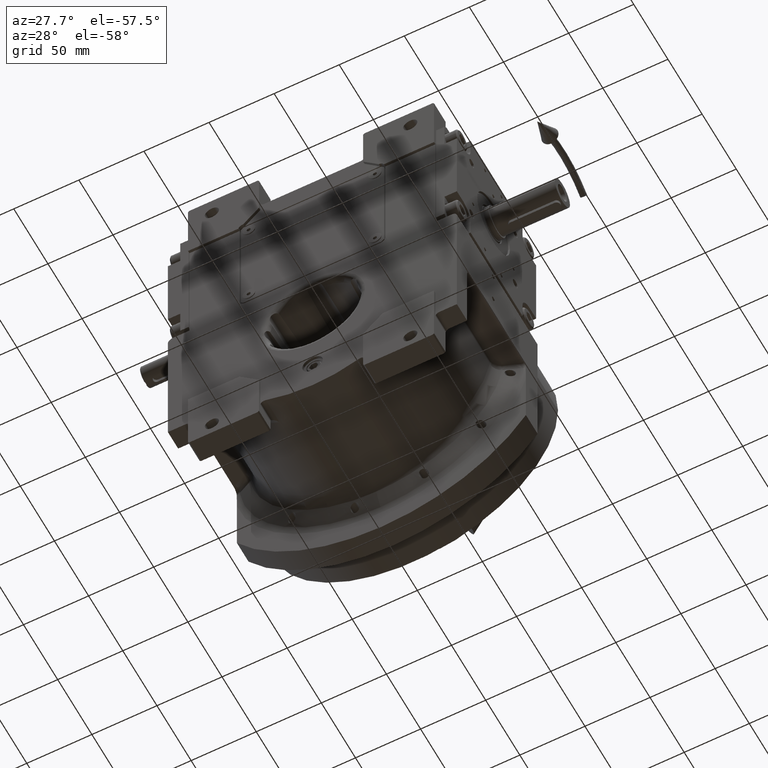
[diagram: clean part render]
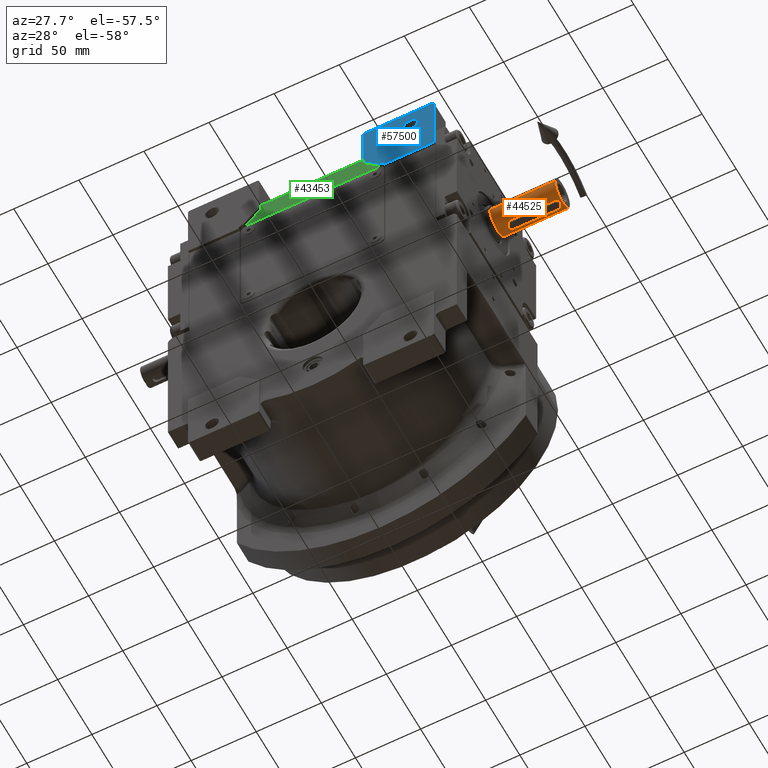
[diagram: same view with three faces highlighted in distinct colors, each labeled with its STEP entity id]
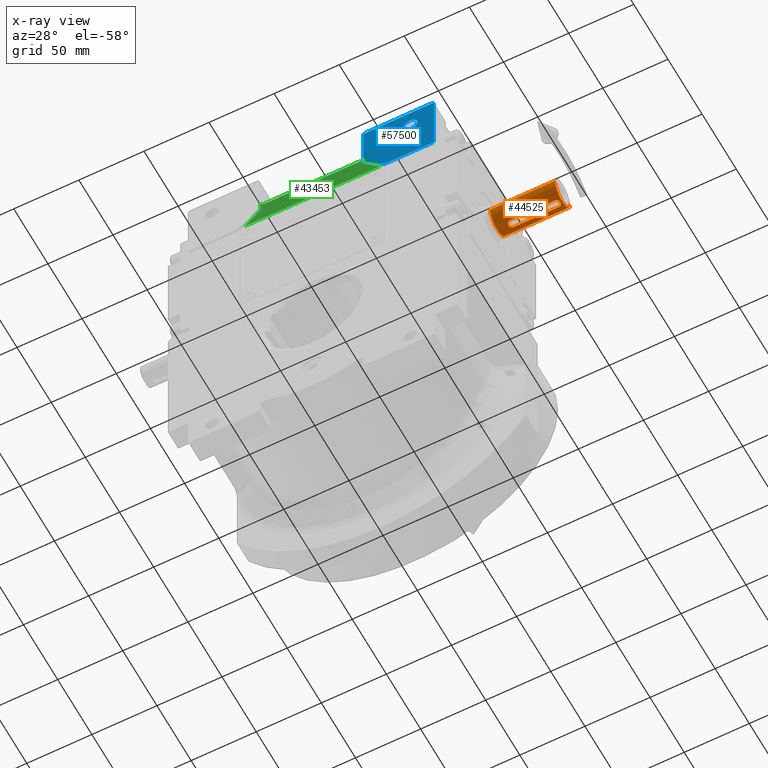
[diagram: x-ray of the same camera — body ghosted, the three highlighted faces saturated]
A machine part, auxiliary view with three faces highlighted in distinct colors.
The next image is the same camera in x-ray (body ghosted, the three faces saturated) — at least one of them is partly hidden behind the body in this view.
Their STEP definitions:

[orange] entity #44525 — the highlighted cylindrical surface (edge-blend (fillet) strip) has radius 11 mm, axis along (-1, -0, -0).
#129 = CARTESIAN_POINT ( 'NONE',  ( -2.786545512822438564, -114.6114912608402392, 10.64101912421236307 ) ) ;
#131 = CARTESIAN_POINT ( 'NONE',  ( -4.840915458495787926E-08, -116.5000000000000000, 11.00000000000048850 ) ) ;
#192 = CARTESIAN_POINT ( 'NONE',  ( 1.167542114975285150, -76.73651225059066405, 10.93782164777859656 ) ) ;
#448 = CARTESIAN_POINT ( 'NONE',  ( 2.748365601800584646, -114.7029062735035723, 10.65097209834158498 ) ) ;
#481 = CARTESIAN_POINT ( 'NONE',  ( -2.438081981028026757, -115.2518712317274634, 10.72743683188283015 ) ) ;
#546 = CARTESIAN_POINT ( 'NONE',  ( -1.429970842532956921, -76.85548033673214263, 10.90719156782524024 ) ) ;
#1048 = DIRECTION ( 'NONE',  ( 4.190823558986625216E-31, -1.000000000000000000, -8.381647117973250432E-31 ) ) ;
#1149 = ORIENTED_EDGE ( 'NONE', *, *, #37460, .T. ) ;
#1634 = ORIENTED_EDGE ( 'NONE', *, *, #12862, .F. ) ;
#1827 = CARTESIAN_POINT ( 'NONE',  ( 2.076400096479022128, -115.6655274302378729, 10.80229491738725933 ) ) ;
#2475 = CARTESIAN_POINT ( 'NONE',  ( -3.000000000000073719, -113.5000000000000000, 10.58300524425882827 ) ) ;
#3692 = CARTESIAN_POINT ( 'NONE',  ( 2.331831195179038474, -77.61164425542862944, 10.75053737701511913 ) ) ;
#4353 = CARTESIAN_POINT ( 'NONE',  ( 2.854075889747961003, -78.57447739851251356, 10.62355101183470119 ) ) ;
#4684 = CARTESIAN_POINT ( 'NONE',  ( 2.772312148145364308, -78.35357030373856446, 10.64471541581966818 ) ) ;
#4899 = EDGE_CURVE ( 'NONE', #51442, #62395, #65259, .T. ) ;
#4946 = AXIS2_PLACEMENT_3D ( 'NONE', #21694, #53336, #63618 ) ;
#4960 = ORIENTED_EDGE ( 'NONE', *, *, #62304, .F. ) ;
#5022 = CARTESIAN_POINT ( 'NONE',  ( 1.286031796418897866, -76.78935861155120790, 10.92437284017435495 ) ) ;
#5298 = CARTESIAN_POINT ( 'NONE',  ( -2.331831185041221222, -115.3883557567792764, 10.75053737960897493 ) ) ;
#5355 = CARTESIAN_POINT ( 'NONE',  ( -0.6690474891746189812, -76.57389770467740675, 10.97984744493158260 ) ) ;
#5582 = CARTESIAN_POINT ( 'NONE',  ( 2.601559358105706821, -114.9971618098907840, 10.68881840702278474 ) ) ;
#5857 = CARTESIAN_POINT ( 'NONE',  ( 3.235562306570556233E-29, -67.99999999999998579, 0.000000000000000000 ) ) ;
#6034 = CARTESIAN_POINT ( 'NONE',  ( -1.127575440310266019, -76.71996127125699161, 10.94202595200815686 ) ) ;
#6314 = CARTESIAN_POINT ( 'NONE',  ( -1.512920531882271824, -116.0924210061373287, 10.89501526675175036 ) ) ;
#6979 = CARTESIAN_POINT ( 'NONE',  ( 0.9835667666182150715, -116.3349916050398889, 10.95606526596657915 ) ) ;
#7090 = ORIENTED_EDGE ( 'NONE', *, *, #4899, .F. ) ;
#7171 = CARTESIAN_POINT ( 'NONE',  ( -11.00000000000000000, -117.9999999999999858, 4.718447854656915297E-13 ) ) ;
#7705 = VECTOR ( 'NONE', #39184, 1000.000000000000000 ) ;
#7867 = LINE ( 'NONE', #28893, #14544 ) ;
#8529 = CARTESIAN_POINT ( 'NONE',  ( 1.761503377968230977, -77.06373099116252945, 10.85852761879097805 ) ) ;
#8847 = CARTESIAN_POINT ( 'NONE',  ( 2.211193340447755951, -77.47227894400909065, 10.77562497333751068 ) ) ;
#9543 = CARTESIAN_POINT ( 'NONE',  ( 2.801868822121423630, -78.42737245009013236, 10.63704590504073089 ) ) ;
#9865 = CARTESIAN_POINT ( 'NONE',  ( 11.00000000000000000, -117.9999999999999858, 0.000000000000000000 ) ) ;
#10129 = CARTESIAN_POINT ( 'NONE',  ( -2.211193358110664864, -115.5277210365973701, 10.77562496973145656 ) ) ;
#10541 = CARTESIAN_POINT ( 'NONE',  ( -2.698907276580597703, -78.18945505232750293, 10.66393861832711920 ) ) ;
#10816 = CARTESIAN_POINT ( 'NONE',  ( -2.232376625041755602, -115.5043590134487346, 10.77130177311130588 ) ) ;
#11034 = DIRECTION ( 'NONE',  ( 1.000000000000000000, 0.000000000000000000, -7.549516567451064475E-15 ) ) ;
#11136 = CARTESIAN_POINT ( 'NONE',  ( -0.3739857927347142730, -116.4999999999999858, 11.00000000000050981 ) ) ;
#11206 = CARTESIAN_POINT ( 'NONE',  ( -1.067681461186224867, -76.69621423876724009, 10.94807461226177203 ) ) ;
#11469 = CARTESIAN_POINT ( 'NONE',  ( 1.139535554658597460, -116.2751577281618438, 10.94078554495679612 ) ) ;
#11563 = CARTESIAN_POINT ( 'NONE',  ( -1.942007649469778663, -77.21260548667788726, 10.82708015886219854 ) ) ;
#11990 = LINE ( 'NONE', #38155, #38782 ) ;
#12088 = DIRECTION ( 'NONE',  ( 4.190823558986625216E-31, -1.000000000000000000, -8.381647117973250432E-31 ) ) ;
#12162 = CARTESIAN_POINT ( 'NONE',  ( 2.097778197096812125, -115.6448602184734966, 10.79818605929185615 ) ) ;
#12862 = EDGE_CURVE ( 'NONE', #19240, #14517, #45337, .T. ) ;
#13645 = VECTOR ( 'NONE', #46015, 1000.000000000000000 ) ;
#13701 = CARTESIAN_POINT ( 'NONE',  ( 2.498350210409115757, -77.83631408846900968, 10.71355039470006609 ) ) ;
#14042 = CARTESIAN_POINT ( 'NONE',  ( 1.512920533460961892, -76.90757899485137727, 10.89501526605510229 ) ) ;
#14517 = VERTEX_POINT ( 'NONE', #2475 ) ;
#14544 = VECTOR ( 'NONE', #49873, 1000.000000000000000 ) ;
#15326 = CARTESIAN_POINT ( 'NONE',  ( -1.179703459327975157, -116.2583394675193915, 10.93651200414548441 ) ) ;
#15383 = CARTESIAN_POINT ( 'NONE',  ( -2.644564621108238978, -78.08127093686657361, 10.67795878946513000 ) ) ;
#15654 = CARTESIAN_POINT ( 'NONE',  ( -2.896620451319825040, -114.2867369626761587, 10.61255511890330183 ) ) ;
#15722 = CARTESIAN_POINT ( 'NONE',  ( -2.601559308220465994, -78.00283810369266746, 10.68881842332068643 ) ) ;
#15974 = CARTESIAN_POINT ( 'NONE',  ( 2.031554872715503279, -115.7076528737364356, 10.81075489181149507 ) ) ;
#15998 = CARTESIAN_POINT ( 'NONE',  ( -1.159478978466615073, -116.2668804870942694, 10.93868413037348652 ) ) ;
#16068 = CARTESIAN_POINT ( 'NONE',  ( -1.897425700790509762, -77.17558050972417050, 10.83486050620179952 ) ) ;
#16344 = CARTESIAN_POINT ( 'NONE',  ( -2.920736496382435821, -114.1920785685286575, 10.60630211981259130 ) ) ;
#16405 = CARTESIAN_POINT ( 'NONE',  ( -2.031554922310092159, -77.29234717181739711, 10.81075488192654710 ) ) ;
#16925 = DIRECTION ( 'NONE',  ( 1.000000000000000000, 0.000000000000000000, -7.549516567451066053E-15 ) ) ;
#17006 = CARTESIAN_POINT ( 'NONE',  ( 2.999999999999926281, -113.5000000000000000, 10.58300524425882827 ) ) ;
#19240 = VERTEX_POINT ( 'NONE', #32155 ) ;
#19263 = ORIENTED_EDGE ( 'NONE', *, *, #30068, .F. ) ;
#20811 = CARTESIAN_POINT ( 'NONE',  ( -2.772312159647769114, -114.6464296684535213, 10.64471541497836782 ) ) ;
#20876 = CARTESIAN_POINT ( 'NONE',  ( -2.715324926754107082, -78.22394794041348121, 10.65964344122200025 ) ) ;
#21219 = CARTESIAN_POINT ( 'NONE',  ( -0.1869662585111979136, -76.49999999283610919, 11.00000258885300575 ) ) ;
#21497 = CARTESIAN_POINT ( 'NONE',  ( -1.234039042478084713, -116.2345038436760660, 10.93043900566959081 ) ) ;
#21566 = CARTESIAN_POINT ( 'NONE',  ( 1.208541853669300670, -76.75409394963317311, 10.93334476671340028 ) ) ;
#21694 = CARTESIAN_POINT ( 'NONE',  ( 3.235562306570556233E-29, -67.99999999999998579, 0.000000000000000000 ) ) ;
#21908 = CARTESIAN_POINT ( 'NONE',  ( -0.7660301964639695260, -76.59769131162435940, 10.97354823434117144 ) ) ;
#22072 = CARTESIAN_POINT ( 'NONE',  ( -1.676907202577966257E-27, -117.9999999999999858, 4.718447854656915297E-13 ) ) ;
#22150 = CARTESIAN_POINT ( 'NONE',  ( 0.9111339967346082647, -116.3587381832187759, 10.96220668040143309 ) ) ;
#22511 = CARTESIAN_POINT ( 'NONE',  ( 2.446669414197478520, -115.2470624180614465, 10.72593587093006562 ) ) ;
#22735 = FACE_OUTER_BOUND ( 'NONE', #49571, .T. ) ;
#22860 = CARTESIAN_POINT ( 'NONE',  ( 2.698907300592920055, -114.8105448978638066, 10.66393860694408957 ) ) ;
#25384 = CARTESIAN_POINT ( 'NONE',  ( 2.979326592047871092, -79.09712189806012361, 10.59077590235678379 ) ) ;
#25717 = CARTESIAN_POINT ( 'NONE',  ( 2.438082008746787821, -77.74812880550850025, 10.72743682466660431 ) ) ;
#26385 = CARTESIAN_POINT ( 'NONE',  ( -2.916727202267192176, -78.70149496793986543, 10.60716793333591035 ) ) ;
#26629 = CARTESIAN_POINT ( 'NONE',  ( 2.768513101405047472, -114.6555823575875337, 10.64570307426178353 ) ) ;
#26655 = CARTESIAN_POINT ( 'NONE',  ( -2.653232546180599893, -114.9137805338954763, 10.67643293072689303 ) ) ;
#26988 = CARTESIAN_POINT ( 'NONE',  ( 0.7660654482596133130, -116.4022991523579691, 10.97354467628115771 ) ) ;
#27082 = CARTESIAN_POINT ( 'NONE',  ( -2.767734110829759508, -78.34256138730094676, 10.64590626962410091 ) ) ;
#27335 = CARTESIAN_POINT ( 'NONE',  ( 2.916727034310283795, -114.2985054512027574, 10.60716798336008715 ) ) ;
#27359 = CARTESIAN_POINT ( 'NONE',  ( -2.801868851850198627, -114.5726274728256726, 10.63704589790049404 ) ) ;
#27422 = CARTESIAN_POINT ( 'NONE',  ( -2.768513115839232874, -78.34441767696033310, 10.64570307403959504 ) ) ;
#27814 = CARTESIAN_POINT ( 'NONE',  ( 2.999999999999926281, -113.5000000000000000, 10.58300524425882827 ) ) ;
#28017 = CARTESIAN_POINT ( 'NONE',  ( 1.279005597976971442, -116.2172074953522980, 10.92607964090155193 ) ) ;
#28210 = VERTEX_POINT ( 'NONE', #27814 ) ;
#28522 = DIRECTION ( 'NONE',  ( 4.190823558986625216E-31, -1.000000000000000000, -8.381647117973250432E-31 ) ) ;
#28893 = CARTESIAN_POINT ( 'NONE',  ( 2.999999999999926281, -79.50000000000000000, 10.58300524425835576 ) ) ;
#30068 = EDGE_CURVE ( 'NONE', #14517, #42099, #54710, .T. ) ;
#31130 = CARTESIAN_POINT ( 'NONE',  ( -1.322026388172344413, -116.1933228505703539, 10.91998920232880721 ) ) ;
#31199 = CARTESIAN_POINT ( 'NONE',  ( -0.9835476433820019571, -76.66500159928874325, 10.95606724537882748 ) ) ;
#31248 = EDGE_CURVE ( 'NONE', #57088, #28210, #7867, .T. ) ;
#31539 = CARTESIAN_POINT ( 'NONE',  ( -0.3790214207103356214, -76.51752795411343300, 10.99496477369260461 ) ) ;
#31777 = CARTESIAN_POINT ( 'NONE',  ( 2.999999999999919176, -113.9062021680413750, 10.58646632254322206 ) ) ;
#31804 = CARTESIAN_POINT ( 'NONE',  ( -1.286031809961730721, -116.2106413819468287, 10.92437284010989806 ) ) ;
#32155 = CARTESIAN_POINT ( 'NONE',  ( -3.000000000000073719, -79.50000000000000000, 10.58300524425882827 ) ) ;
#32206 = CARTESIAN_POINT ( 'NONE',  ( -2.446669362798354008, -77.75293751087282601, 10.72593588417801058 ) ) ;
#32459 = CARTESIAN_POINT ( 'NONE',  ( 1.678559002724991700, -115.9883759540915946, 10.87070391493019628 ) ) ;
#32485 = CARTESIAN_POINT ( 'NONE',  ( -2.143602493980512058, -115.5990403563740898, 10.78918135663523969 ) ) ;
#32550 = CARTESIAN_POINT ( 'NONE',  ( -3.000000000000080380, -79.09379826886221565, 10.58646627284833031 ) ) ;
#32807 = CARTESIAN_POINT ( 'NONE',  ( 1.897425672200162117, -115.8244195134346342, 10.83486051196191369 ) ) ;
#32963 = CARTESIAN_POINT ( 'NONE',  ( 10.99999999999993960, -67.99999999999998579, 0.000000000000000000 ) ) ;
#33142 = CARTESIAN_POINT ( 'NONE',  ( 2.764613546698427626, -114.6648726058257921, 10.64672004168916963 ) ) ;
#34697 = CARTESIAN_POINT ( 'NONE',  ( 2.143602447687566137, -77.40095959642091827, 10.78918136595093102 ) ) ;
#35035 = CARTESIAN_POINT ( 'NONE',  ( 2.999999999999920064, -79.29694141520381834, 10.58473540700586568 ) ) ;
#35350 = CARTESIAN_POINT ( 'NONE',  ( 1.433641076574839968, -76.86340366032534632, 10.90581970597269112 ) ) ;
#36036 = CARTESIAN_POINT ( 'NONE',  ( 2.896620395667458769, -78.71326283637806398, 10.61255514141635636 ) ) ;
#36299 = CARTESIAN_POINT ( 'NONE',  ( -1.433641077008285025, -116.1365963392273954, 10.90581970676166712 ) ) ;
#36667 = VERTEX_POINT ( 'NONE', #58308 ) ;
#36681 = ORIENTED_EDGE ( 'NONE', *, *, #50203, .F. ) ;
#36696 = CARTESIAN_POINT ( 'NONE',  ( -1.147497411269812639, -76.72812909463446829, 10.93995103007683412 ) ) ;
#36941 = CARTESIAN_POINT ( 'NONE',  ( 2.767734096340818795, -114.6574386473348426, 10.64590626981477328 ) ) ;
#37037 = CARTESIAN_POINT ( 'NONE',  ( -2.764613558908787905, -78.33512742314236732, 10.64672004227435664 ) ) ;
#37369 = CARTESIAN_POINT ( 'NONE',  ( -1.139534090975058644, -76.72484166894793134, 10.94078570188625577 ) ) ;
#37460 = EDGE_CURVE ( 'NONE', #45360, #62395, #11990, .T. ) ;
#37619 = CARTESIAN_POINT ( 'NONE',  ( 1.147497349431809033, -116.2718709309673102, 10.93995103388387236 ) ) ;
#37647 = CARTESIAN_POINT ( 'NONE',  ( -2.854075939418667218, -114.4255224491567589, 10.62355099528262947 ) ) ;
#37721 = CARTESIAN_POINT ( 'NONE',  ( -0.9111087367172178153, -76.64125370730343434, 10.96220926695045783 ) ) ;
#38155 = CARTESIAN_POINT ( 'NONE',  ( -11.00000000000005862, -67.99999999999998579, 4.718447854656915297E-13 ) ) ;
#38331 = CARTESIAN_POINT ( 'NONE',  ( 0.1869928963672328748, -116.5000000000000000, 11.00000000000050981 ) ) ;
#38782 = VECTOR ( 'NONE', #28522, 1000.000000000000000 ) ;
#39184 = DIRECTION ( 'NONE',  ( 4.190823558986625216E-31, -1.000000000000000000, -8.381647117973250432E-31 ) ) ;
#39776 = ORIENTED_EDGE ( 'NONE', *, *, #31248, .T. ) ;
#40048 = EDGE_CURVE ( 'NONE', #57088, #19240, #50509, .T. ) ;
#40207 = CARTESIAN_POINT ( 'NONE',  ( 2.293772752492898359, -77.56545913327460084, 10.75861604569774777 ) ) ;
#40543 = CARTESIAN_POINT ( 'NONE',  ( 2.920736444934341591, -78.80792121401641737, 10.60630214428831941 ) ) ;
#41206 = CARTESIAN_POINT ( 'NONE',  ( 2.722192524068734798, -78.23282212291366022, 10.65774368925957560 ) ) ;
#41484 = CARTESIAN_POINT ( 'NONE',  ( -3.000000000000079492, -113.7030584421398487, 10.58473539081854931 ) ) ;
#41553 = CARTESIAN_POINT ( 'NONE',  ( -1.109627391464160562, -76.71270413328906557, 10.94387156038236952 ) ) ;
#41689 = CARTESIAN_POINT ( 'NONE',  ( 2.999999999999926281, -79.50000000000000000, 10.58300524425835576 ) ) ;
#41807 = CARTESIAN_POINT ( 'NONE',  ( -0.7693699750027528372, -116.4290454329743056, 10.97984356645985038 ) ) ;
#41867 = CARTESIAN_POINT ( 'NONE',  ( -2.009136536754209779, -77.27193756388575707, 10.81489991634849446 ) ) ;
#42099 = VERTEX_POINT ( 'NONE', #131 ) ;
#42143 = CARTESIAN_POINT ( 'NONE',  ( -2.779840307740174765, -114.6280617584312438, 10.64275981934222770 ) ) ;
#42207 = CARTESIAN_POINT ( 'NONE',  ( 1.234039021328156460, -76.76549614676038402, 10.93043900635687038 ) ) ;
#42455 = CARTESIAN_POINT ( 'NONE',  ( 2.737723598718589280, -114.7268635114971858, 10.65376798934626912 ) ) ;
#42482 = CARTESIAN_POINT ( 'NONE',  ( -1.167542148442811456, -116.2634877352683276, 10.93782164602118634 ) ) ;
#42549 = CARTESIAN_POINT ( 'NONE',  ( 0.7694190409318364399, -76.57097496801954151, 10.97983838684685765 ) ) ;
#42785 = CARTESIAN_POINT ( 'NONE',  ( 2.644564663183356146, -114.9187289833812144, 10.67795877401470328 ) ) ;
#42810 = CARTESIAN_POINT ( 'NONE',  ( -2.293772750023087781, -115.4345408691869324, 10.75861604645032443 ) ) ;
#42870 = CARTESIAN_POINT ( 'NONE',  ( 1.157452250761899615, -76.73226697775150740, 10.93890089386556852 ) ) ;
#42898 = ORIENTED_EDGE ( 'NONE', *, *, #49206, .T. ) ;
#42993 = CYLINDRICAL_SURFACE ( 'NONE', #4946, 11.00000000000000000 ) ;
#43478 = CARTESIAN_POINT ( 'NONE',  ( 2.759871028151260841, -114.6761075330201294, 10.64795842826984007 ) ) ;
#43488 = ORIENTED_EDGE ( 'NONE', *, *, #40048, .F. ) ;
#43823 = CARTESIAN_POINT ( 'NONE',  ( 1.429970843166102679, -116.1445196625885217, 10.90719156650605193 ) ) ;
#44525 = ADVANCED_FACE ( 'NONE', ( #59495, #22735 ), #42993, .T. ) ;
#45335 = CARTESIAN_POINT ( 'NONE',  ( 2.831211728711954034, -78.50588394405968984, 10.62945304072544772 ) ) ;
#45337 = LINE ( 'NONE', #66313, #13645 ) ;
#45360 = VERTEX_POINT ( 'NONE', #62130 ) ;
#45680 = CARTESIAN_POINT ( 'NONE',  ( 2.232376612811747929, -77.49564097281745489, 10.77130177557136292 ) ) ;
#46015 = DIRECTION ( 'NONE',  ( 4.190823558986625216E-31, -1.000000000000000000, -8.381647117973250432E-31 ) ) ;
#46338 = CARTESIAN_POINT ( 'NONE',  ( 2.786545491918462236, -78.38850868690020945, 10.64101912818406070 ) ) ;
#46691 = CARTESIAN_POINT ( 'NONE',  ( 2.167336317328032003, -77.42546825588506465, 10.78446061115302967 ) ) ;
#47352 = CARTESIAN_POINT ( 'NONE',  ( 1.179703428401759346, -76.74166051924399312, 10.93651200567690474 ) ) ;
#47633 = CARTESIAN_POINT ( 'NONE',  ( -2.831211772329589760, -114.4941159338586374, 10.62945302790810054 ) ) ;
#47948 = CARTESIAN_POINT ( 'NONE',  ( 1.765016538473147323, -115.9284393430261133, 10.85718210774114389 ) ) ;
#48050 = CARTESIAN_POINT ( 'NONE',  ( -3.000000000000073719, -79.50000000000000000, 10.58300524425882827 ) ) ;
#48296 = CARTESIAN_POINT ( 'NONE',  ( 1.127578398133127324, -116.2800375271874884, 10.94202563825614050 ) ) ;
#48382 = CARTESIAN_POINT ( 'NONE',  ( -1.678559007684448101, -77.01162404916422588, 10.87070391387390345 ) ) ;
#48636 = CARTESIAN_POINT ( 'NONE',  ( 1.109632560325084949, -116.2872937962976181, 10.94387101518969097 ) ) ;
#49206 = EDGE_CURVE ( 'NONE', #36667, #45360, #66921, .T. ) ;
#49571 = EDGE_LOOP ( 'NONE', ( #1149, #7090, #36681, #42898 ) ) ;
#49873 = DIRECTION ( 'NONE',  ( 4.190823558986625216E-31, -1.000000000000000000, -8.381647117973250432E-31 ) ) ;
#50203 = EDGE_CURVE ( 'NONE', #36667, #51442, #64603, .T. ) ;
#50509 = B_SPLINE_CURVE_WITH_KNOTS ( 'NONE', 3,
 ( #66978, #35035, #25384, #40543, #36036, #4353, #45335, #9543, #46338, #67661, #66312, #4684, #41206, #60831, #13701, #25717, #3692, #40207, #45680, #8847, #46691, #34697, #55670, #8529, #14042, #35350, #56325, #5022, #42207, #21566, #47352, #192, #67988, #42870, #42549, #63498, #21219, #31539, #5355, #21908, #37721, #31199, #11206, #41553, #6034, #37369, #36696, #58691, #546, #48382, #63165, #16068, #11563, #41867, #16405, #58335, #63826, #52849, #32206, #15722, #15383, #10541, #20876, #52527, #57673, #53203, #37037, #27082, #27422, #26385, #32550, #48050 ),
 .UNSPECIFIED., .F., .F.,
 ( 4, 2, 2, 1, 1, 1, 2, 2, 2, 2, 2, 2, 2, 2, 2, 2, 1, 1, 2, 2, 2, 2, 2, 1, 1, 1, 2, 2, 2, 2, 2, 2, 2, 2, 2, 2, 1, 1, 2, 2, 4 ),
 ( 0.000000000000000000, 0.06250000000004715672, 0.09375000000007072121, 0.1093750000000824479, 0.1171875000000862366, 0.1210937500000881101, 0.1230468750000890399, 0.1250000000000899558, 0.1875000000000942579, 0.2187500000000982825, 0.2343750000001017797, 0.2421875000001035838, 0.2500000000001053602, 0.3125000000001197376, 0.3437500000001258438, 0.3593750000001288969, 0.3671875000001291744, 0.3710937500001292855, 0.3730468750001292855, 0.3750000000001293410, 0.5000000000001079137, 0.5625000000000973666, 0.5937500000000915934, 0.6093750000000887068, 0.6171875000000880407, 0.6210937500000884848, 0.6230468750000885958, 0.6250000000000887068, 0.6875000000000623945, 0.7187500000000492939, 0.7343750000000426326, 0.7421875000000405231, 0.7500000000000384137, 0.8125000000000125455, 0.8437499999999995559, 0.8593749999999906741, 0.8671874999999888978, 0.8710937499999910072, 0.8730468749999920064, 0.8749999999999930056, 1.000000000000000000 ),
 .UNSPECIFIED. ) ;
#51442 = VERTEX_POINT ( 'NONE', #9865 ) ;
#51641 = EDGE_LOOP ( 'NONE', ( #39776, #4960, #19263, #1634, #43488 ) ) ;
#52129 = CARTESIAN_POINT ( 'NONE',  ( -1.157453054966566253, -116.2677326878750534, 10.93890081083039334 ) ) ;
#52463 = CARTESIAN_POINT ( 'NONE',  ( -2.498350178177038750, -115.1636859597701914, 10.71355040379593682 ) ) ;
#52527 = CARTESIAN_POINT ( 'NONE',  ( -2.737723593628864194, -78.27313647700940180, 10.65376799547565234 ) ) ;
#52754 = CARTESIAN_POINT ( 'NONE',  ( 0.3790610715422206844, -116.4824670046868960, 10.99496089072063221 ) ) ;
#52849 = CARTESIAN_POINT ( 'NONE',  ( -2.308734339584197048, -77.56607553631238261, 10.75673227047042957 ) ) ;
#53136 = CARTESIAN_POINT ( 'NONE',  ( -2.979326620798048886, -113.9028778870461309, 10.59077587802696030 ) ) ;
#53203 = CARTESIAN_POINT ( 'NONE',  ( -2.759871036972639580, -78.32389248760772205, 10.64795842999695985 ) ) ;
#53336 = DIRECTION ( 'NONE',  ( -4.190823558986625216E-31, 1.000000000000000000, 8.381647117973250432E-31 ) ) ;
#53483 = CARTESIAN_POINT ( 'NONE',  ( -1.761503380922786244, -115.9362690069877573, 10.85852761782648734 ) ) ;
#54710 = B_SPLINE_CURVE_WITH_KNOTS ( 'NONE', 3,
 ( #58272, #41484, #53136, #16344, #15654, #37647, #47633, #27359, #129, #42143, #58620, #20811, #57257, #26655, #52463, #481, #5298, #42810, #10816, #10129, #63761, #32485, #67929, #53483, #6314, #36299, #31130, #31804, #21497, #62435, #15326, #42482, #15998, #52129, #41807, #11136, #57943 ),
 .UNSPECIFIED., .F., .F.,
 ( 4, 2, 2, 1, 1, 1, 2, 2, 2, 2, 2, 2, 2, 2, 2, 2, 1, 1, 2, 2, 4 ),
 ( 0.000000000000000000, 0.06249999999990615840, 0.09374999999986140253, 0.1093749999998390315, 0.1171874999998278738, 0.1210937499998244044, 0.1230468749998247235, 0.1249999999998250566, 0.1874999999998420430, 0.2187499999998504530, 0.2343749999998546441, 0.2421874999998580302, 0.2499999999998613887, 0.3124999999998932521, 0.3437499999999080735, 0.3593749999999155120, 0.3671874999999191758, 0.3710937499999211187, 0.3730468749999232836, 0.3749999999999254485, 0.5000000000000000000 ),
 .UNSPECIFIED. ) ;
#54878 = AXIS2_PLACEMENT_3D ( 'NONE', #5857, #12088, #11034 ) ;
#55670 = CARTESIAN_POINT ( 'NONE',  ( 1.942138428050937504, -77.19951509893311936, 10.82877008393308849 ) ) ;
#55673 = B_SPLINE_CURVE_WITH_KNOTS ( 'NONE', 3,
 ( #67570, #38331, #52754, #58244, #26988, #22150, #6979, #58594, #48636, #48296, #11469, #37619, #28017, #43823, #32459, #47948, #32807, #63405, #59284, #15974, #1827, #12162, #58943, #22511, #5582, #42785, #22860, #63730, #42455, #448, #43478, #33142, #36941, #26629, #27335, #31777, #17006 ),
 .UNSPECIFIED., .F., .F.,
 ( 4, 2, 2, 1, 1, 1, 2, 2, 2, 2, 2, 2, 2, 2, 2, 2, 1, 1, 2, 2, 4 ),
 ( 0.5000000000000000000, 0.5624999999999279465, 0.5937499999998923084, 0.6093749999998750999, 0.6171874999998657740, 0.6210937499998611111, 0.6230468749998595568, 0.6249999999998580025, 0.6874999999998666622, 0.7187499999998709921, 0.7343749999998732125, 0.7421874999998744338, 0.7499999999998755440, 0.8124999999998847589, 0.8437499999998875344, 0.8593749999998911981, 0.8671874999998904210, 0.8710937499998928635, 0.8730468749998970823, 0.8749999999999013012, 1.000000000000000000 ),
 .UNSPECIFIED. ) ;
#56325 = CARTESIAN_POINT ( 'NONE',  ( 1.322026378660216439, -76.80667714470885699, 10.91998920209339552 ) ) ;
#57088 = VERTEX_POINT ( 'NONE', #41689 ) ;
#57257 = CARTESIAN_POINT ( 'NONE',  ( -2.722192511089886136, -114.7671779114493518, 10.65774369693636459 ) ) ;
#57673 = CARTESIAN_POINT ( 'NONE',  ( -2.748365602923857232, -78.29709372879082707, 10.65097210258031701 ) ) ;
#57943 = CARTESIAN_POINT ( 'NONE',  ( -4.840915458495787926E-08, -116.5000000000000000, 11.00000000000048850 ) ) ;
#58244 = CARTESIAN_POINT ( 'NONE',  ( 0.6690863468408663195, -116.4260934098166018, 10.97984356288100116 ) ) ;
#58272 = CARTESIAN_POINT ( 'NONE',  ( -3.000000000000073719, -113.5000000000000000, 10.58300524425882827 ) ) ;
#58308 = CARTESIAN_POINT ( 'NONE',  ( 10.99999999999993960, -67.99999999999998579, 0.000000000000000000 ) ) ;
#58335 = CARTESIAN_POINT ( 'NONE',  ( -2.076400153897482781, -77.33447262473092110, 10.80229490591453434 ) ) ;
#58594 = CARTESIAN_POINT ( 'NONE',  ( 1.067691574909811481, -116.3037818627402373, 10.94807355359302647 ) ) ;
#58620 = CARTESIAN_POINT ( 'NONE',  ( -2.775339673020046138, -114.6390896219055406, 10.64392870139622183 ) ) ;
#58691 = CARTESIAN_POINT ( 'NONE',  ( -1.279005615026155285, -76.78279251499961333, 10.92607964108014151 ) ) ;
#58943 = CARTESIAN_POINT ( 'NONE',  ( 2.308734362824007569, -115.4339244520515138, 10.75673226671229266 ) ) ;
#59284 = CARTESIAN_POINT ( 'NONE',  ( 2.009136490928576713, -115.7280624773661089, 10.81489992548212520 ) ) ;
#59495 = FACE_BOUND ( 'NONE', #51641, .T. ) ;
#60831 = CARTESIAN_POINT ( 'NONE',  ( 2.653232577745011422, -78.08621952457060900, 10.67643291959784513 ) ) ;
#62130 = CARTESIAN_POINT ( 'NONE',  ( -11.00000000000005862, -67.99999999999998579, 4.718447854656915297E-13 ) ) ;
#62304 = EDGE_CURVE ( 'NONE', #42099, #28210, #55673, .T. ) ;
#62395 = VERTEX_POINT ( 'NONE', #7171 ) ;
#62435 = CARTESIAN_POINT ( 'NONE',  ( -1.208541879012653641, -116.2459060391745567, 10.93334476567145508 ) ) ;
#63165 = CARTESIAN_POINT ( 'NONE',  ( -1.765016550553743402, -77.07156066506719583, 10.85718210521195815 ) ) ;
#63405 = CARTESIAN_POINT ( 'NONE',  ( 1.942007614415594885, -115.7873945428070073, 10.82708016586956923 ) ) ;
#63498 = CARTESIAN_POINT ( 'NONE',  ( 0.3739328618712013941, -76.50000001432783847, 10.99999482229338810 ) ) ;
#63618 = DIRECTION ( 'NONE',  ( 1.000000000000000000, 0.000000000000000000, -7.549516567451064475E-15 ) ) ;
#63730 = CARTESIAN_POINT ( 'NONE',  ( 2.715324943672469793, -114.7760520230643522, 10.65964343166080930 ) ) ;
#63761 = CARTESIAN_POINT ( 'NONE',  ( -2.167336347002070340, -115.5745317129838696, 10.78446060510474069 ) ) ;
#63826 = CARTESIAN_POINT ( 'NONE',  ( -2.097778273838088126, -77.35513985681002680, 10.79818604398536408 ) ) ;
#64603 = LINE ( 'NONE', #32963, #7705 ) ;
#65259 = CIRCLE ( 'NONE', #66326, 11.00000000000000000 ) ;
#66312 = CARTESIAN_POINT ( 'NONE',  ( 2.775339659217229471, -78.36091034448604375, 10.64392870297112026 ) ) ;
#66313 = CARTESIAN_POINT ( 'NONE',  ( -3.000000000000073719, -79.50000000000000000, 10.58300524425882827 ) ) ;
#66326 = AXIS2_PLACEMENT_3D ( 'NONE', #22072, #1048, #16925 ) ;
#66921 = CIRCLE ( 'NONE', #54878, 11.00000000000000000 ) ;
#66978 = CARTESIAN_POINT ( 'NONE',  ( 2.999999999999926281, -79.50000000000000000, 10.58300524425835576 ) ) ;
#67570 = CARTESIAN_POINT ( 'NONE',  ( -4.840915458495787926E-08, -116.5000000000000000, 11.00000000000048850 ) ) ;
#67661 = CARTESIAN_POINT ( 'NONE',  ( 2.779840291039519684, -78.37193820043569303, 10.64275982188527792 ) ) ;
#67929 = CARTESIAN_POINT ( 'NONE',  ( -1.942138448682041219, -115.8004848877713897, 10.82877008001566033 ) ) ;
#67988 = CARTESIAN_POINT ( 'NONE',  ( 1.159478943271778029, -76.73311949815577293, 10.93868413228516800 ) ) ;

[blue] entity #57500 — the highlighted planar face has unit normal (0, -1, 0).
#627 = DIRECTION ( 'NONE',  ( 0.000000000000000000, -1.000000000000000000, 0.000000000000000000 ) ) ;
#1414 = CARTESIAN_POINT ( 'NONE',  ( 94.50000000000000000, -55.50000000000000000, 192.0000000000000000 ) ) ;
#2544 = EDGE_LOOP ( 'NONE', ( #63116, #37478 ) ) ;
#4338 = DIRECTION ( 'NONE',  ( 0.000000000000000000, 0.000000000000000000, 1.000000000000000000 ) ) ;
#4376 = EDGE_CURVE ( 'NONE', #15272, #55212, #35979, .T. ) ;
#4457 = DIRECTION ( 'NONE',  ( -1.000000000000000000, 0.000000000000000000, 0.000000000000000000 ) ) ;
#4666 = DIRECTION ( 'NONE',  ( -0.7071067811865474617, 0.000000000000000000, -0.7071067811865474617 ) ) ;
#5663 = DIRECTION ( 'NONE',  ( 0.000000000000000000, 0.000000000000000000, -1.000000000000000000 ) ) ;
#7890 = ORIENTED_EDGE ( 'NONE', *, *, #46795, .T. ) ;
#8896 = CARTESIAN_POINT ( 'NONE',  ( 93.50000000000000000, -55.50000000000000000, 193.0000000000000000 ) ) ;
#10108 = EDGE_CURVE ( 'NONE', #30569, #35973, #34913, .T. ) ;
#10656 = CARTESIAN_POINT ( 'NONE',  ( 76.20000000000000284, -55.50000000000000000, 178.0000000000000000 ) ) ;
#11192 = PLANE ( 'NONE',  #50788 ) ;
#11451 = CARTESIAN_POINT ( 'NONE',  ( 51.99999999999930367, -55.50000000000000000, 146.0000000000000000 ) ) ;
#12239 = DIRECTION ( 'NONE',  ( 0.000000000000000000, -1.000000000000000000, 0.000000000000000000 ) ) ;
#12329 = ORIENTED_EDGE ( 'NONE', *, *, #10108, .T. ) ;
#12863 = ORIENTED_EDGE ( 'NONE', *, *, #54411, .T. ) ;
#14689 = CARTESIAN_POINT ( 'NONE',  ( 94.50000000000000000, -55.50000000000000000, 143.0000000000000000 ) ) ;
#15120 = AXIS2_PLACEMENT_3D ( 'NONE', #27071, #58684, #63158 ) ;
#15272 = VERTEX_POINT ( 'NONE', #60049 ) ;
#16173 = VECTOR ( 'NONE', #29134, 1000.000000000000000 ) ;
#19336 = CARTESIAN_POINT ( 'NONE',  ( 55.87298334620739837, -55.50000000000000000, 143.0000000000000000 ) ) ;
#19765 = DIRECTION ( 'NONE',  ( -0.7071067811865474617, 0.000000000000000000, 0.7071067811865474617 ) ) ;
#20324 = CARTESIAN_POINT ( 'NONE',  ( 93.50000000000000000, -55.50000000000000000, 193.0000000000000000 ) ) ;
#21291 = CARTESIAN_POINT ( 'NONE',  ( 52.00000000000000000, -55.50000000000000000, 142.0000000000000000 ) ) ;
#22992 = LINE ( 'NONE', #34304, #47461 ) ;
#23221 = EDGE_CURVE ( 'NONE', #59424, #41002, #34954, .T. ) ;
#23532 = AXIS2_PLACEMENT_3D ( 'NONE', #10656, #53661, #26484 ) ;
#23726 = CARTESIAN_POINT ( 'NONE',  ( 94.50000000000000000, -55.50000000000000000, 143.0000000000000000 ) ) ;
#25046 = LINE ( 'NONE', #62145, #30797 ) ;
#26484 = DIRECTION ( 'NONE',  ( 1.000000000000000000, 0.000000000000000000, 0.000000000000000000 ) ) ;
#27071 = CARTESIAN_POINT ( 'NONE',  ( 76.20000000000000284, -55.50000000000000000, 178.0000000000000000 ) ) ;
#29134 = DIRECTION ( 'NONE',  ( 1.000000000000000000, 0.000000000000000000, 0.000000000000000000 ) ) ;
#29220 = ORIENTED_EDGE ( 'NONE', *, *, #23221, .T. ) ;
#30298 = CARTESIAN_POINT ( 'NONE',  ( 39.99999999999929656, -55.50000000000000000, 158.0000000000000000 ) ) ;
#30569 = VERTEX_POINT ( 'NONE', #1414 ) ;
#30797 = VECTOR ( 'NONE', #4666, 1000.000000000000114 ) ;
#30922 = EDGE_CURVE ( 'NONE', #35973, #43778, #63266, .T. ) ;
#32188 = DIRECTION ( 'NONE',  ( -1.000000000000000000, 0.000000000000000000, 0.000000000000000000 ) ) ;
#32744 = ORIENTED_EDGE ( 'NONE', *, *, #50313, .T. ) ;
#33062 = VERTEX_POINT ( 'NONE', #56643 ) ;
#34103 = VECTOR ( 'NONE', #5663, 1000.000000000000000 ) ;
#34304 = CARTESIAN_POINT ( 'NONE',  ( 39.99999999999929656, -55.50000000000000000, 158.0000000000000000 ) ) ;
#34913 = LINE ( 'NONE', #56561, #45408 ) ;
#34954 = LINE ( 'NONE', #61089, #16173 ) ;
#35973 = VERTEX_POINT ( 'NONE', #8896 ) ;
#35979 = CIRCLE ( 'NONE', #15120, 5.500000000000005329 ) ;
#37020 = LINE ( 'NONE', #14689, #43682 ) ;
#37478 = ORIENTED_EDGE ( 'NONE', *, *, #4376, .T. ) ;
#37587 = CARTESIAN_POINT ( 'NONE',  ( 81.69999999999998863, -55.50000000000000000, 178.0000000000000000 ) ) ;
#41002 = VERTEX_POINT ( 'NONE', #23726 ) ;
#43107 = EDGE_CURVE ( 'NONE', #55212, #15272, #53145, .T. ) ;
#43525 = CIRCLE ( 'NONE', #49046, 3.999999999999996891 ) ;
#43553 = CARTESIAN_POINT ( 'NONE',  ( 0.000000000000000000, -55.50000000000000000, 0.000000000000000000 ) ) ;
#43682 = VECTOR ( 'NONE', #4338, 1000.000000000000000 ) ;
#43778 = VERTEX_POINT ( 'NONE', #48771 ) ;
#45408 = VECTOR ( 'NONE', #19765, 1000.000000000000114 ) ;
#46412 = EDGE_LOOP ( 'NONE', ( #50192, #12863, #58995, #29220, #7890, #12329, #59129, #32744 ) ) ;
#46795 = EDGE_CURVE ( 'NONE', #41002, #30569, #37020, .T. ) ;
#47422 = DIRECTION ( 'NONE',  ( 0.9682458365518541443, 0.000000000000000000, 0.2500000000000004441 ) ) ;
#47461 = VECTOR ( 'NONE', #54614, 1000.000000000000114 ) ;
#47717 = EDGE_CURVE ( 'NONE', #59424, #56647, #43525, .T. ) ;
#48369 = FACE_OUTER_BOUND ( 'NONE', #46412, .T. ) ;
#48771 = CARTESIAN_POINT ( 'NONE',  ( 40.99999999999930367, -55.50000000000000000, 193.0000000000000000 ) ) ;
#49046 = AXIS2_PLACEMENT_3D ( 'NONE', #21291, #627, #47422 ) ;
#50192 = ORIENTED_EDGE ( 'NONE', *, *, #50424, .T. ) ;
#50313 = EDGE_CURVE ( 'NONE', #43778, #33062, #25046, .T. ) ;
#50424 = EDGE_CURVE ( 'NONE', #33062, #64263, #57989, .T. ) ;
#50788 = AXIS2_PLACEMENT_3D ( 'NONE', #43553, #12239, #32188 ) ;
#51873 = VECTOR ( 'NONE', #4457, 1000.000000000000000 ) ;
#52830 = CARTESIAN_POINT ( 'NONE',  ( 39.99999999999929656, -55.50000000000000000, 192.0000000000000000 ) ) ;
#53145 = CIRCLE ( 'NONE', #23532, 5.500000000000005329 ) ;
#53661 = DIRECTION ( 'NONE',  ( 0.000000000000000000, 1.000000000000000000, 0.000000000000000000 ) ) ;
#54411 = EDGE_CURVE ( 'NONE', #64263, #56647, #22992, .T. ) ;
#54614 = DIRECTION ( 'NONE',  ( 0.7071067811865474617, 0.000000000000000000, -0.7071067811865474617 ) ) ;
#55212 = VERTEX_POINT ( 'NONE', #37587 ) ;
#56561 = CARTESIAN_POINT ( 'NONE',  ( 94.50000000000000000, -55.50000000000000000, 192.0000000000000000 ) ) ;
#56643 = CARTESIAN_POINT ( 'NONE',  ( 39.99999999999929656, -55.50000000000000000, 192.0000000000000000 ) ) ;
#56647 = VERTEX_POINT ( 'NONE', #11451 ) ;
#57500 = ADVANCED_FACE ( 'NONE', ( #58318, #48369 ), #11192, .T. ) ;
#57989 = LINE ( 'NONE', #52830, #34103 ) ;
#58318 = FACE_BOUND ( 'NONE', #2544, .T. ) ;
#58684 = DIRECTION ( 'NONE',  ( 0.000000000000000000, 1.000000000000000000, 0.000000000000000000 ) ) ;
#58995 = ORIENTED_EDGE ( 'NONE', *, *, #47717, .F. ) ;
#59129 = ORIENTED_EDGE ( 'NONE', *, *, #30922, .T. ) ;
#59424 = VERTEX_POINT ( 'NONE', #19336 ) ;
#60049 = CARTESIAN_POINT ( 'NONE',  ( 70.70000000000000284, -55.50000000000000000, 178.0000000000000000 ) ) ;
#61089 = CARTESIAN_POINT ( 'NONE',  ( 55.87298334620739837, -55.50000000000000000, 143.0000000000000000 ) ) ;
#62145 = CARTESIAN_POINT ( 'NONE',  ( 40.99999999999930367, -55.50000000000000000, 193.0000000000000000 ) ) ;
#63116 = ORIENTED_EDGE ( 'NONE', *, *, #43107, .T. ) ;
#63158 = DIRECTION ( 'NONE',  ( -1.000000000000000000, 0.000000000000000000, 0.000000000000000000 ) ) ;
#63266 = LINE ( 'NONE', #20324, #51873 ) ;
#64263 = VERTEX_POINT ( 'NONE', #30298 ) ;

[green] entity #43453 — the highlighted planar face has unit normal (0, 1, 0).
#220 = LINE ( 'NONE', #8946, #34261 ) ;
#4322 = EDGE_CURVE ( 'NONE', #33579, #35790, #37712, .T. ) ;
#5015 = DIRECTION ( 'NONE',  ( 0.000000000000000000, 0.000000000000000000, -1.000000000000000000 ) ) ;
#6805 = EDGE_CURVE ( 'NONE', #52464, #61603, #220, .T. ) ;
#7396 = DIRECTION ( 'NONE',  ( 1.000000000000000000, 0.000000000000000000, 0.000000000000000000 ) ) ;
#7888 = CARTESIAN_POINT ( 'NONE',  ( 39.99999999999929656, -53.50000000000000000, 158.0000000000000000 ) ) ;
#8946 = CARTESIAN_POINT ( 'NONE',  ( -51.99999999999930367, -53.50000000000000000, 146.0000000000000000 ) ) ;
#8957 = CIRCLE ( 'NONE', #44169, 3.000000000000002665 ) ;
#8976 = CARTESIAN_POINT ( 'NONE',  ( -36.99999999999929656, -53.50000000000000000, 163.5000000000000000 ) ) ;
#9025 = DIRECTION ( 'NONE',  ( 0.7071067811865480168, 0.000000000000000000, -0.7071067811865470176 ) ) ;
#9766 = ORIENTED_EDGE ( 'NONE', *, *, #6805, .F. ) ;
#10090 = EDGE_CURVE ( 'NONE', #33579, #62761, #48763, .T. ) ;
#13336 = CARTESIAN_POINT ( 'NONE',  ( -36.99999999999929656, -53.50000000000000000, 166.5000000000000000 ) ) ;
#13401 = CARTESIAN_POINT ( 'NONE',  ( -36.99999999999929656, -53.50000000000000000, 163.5000000000000000 ) ) ;
#13897 = CARTESIAN_POINT ( 'NONE',  ( 39.99999999999929656, -53.50000000000000000, 166.5000000000000000 ) ) ;
#14027 = CARTESIAN_POINT ( 'NONE',  ( -39.99999999999929656, -53.50000000000000000, 158.0000000000000000 ) ) ;
#14136 = DIRECTION ( 'NONE',  ( 0.7071067811865480168, 0.000000000000000000, 0.7071067811865470176 ) ) ;
#16858 = EDGE_CURVE ( 'NONE', #19085, #52464, #52431, .T. ) ;
#18450 = ORIENTED_EDGE ( 'NONE', *, *, #65586, .F. ) ;
#19081 = ORIENTED_EDGE ( 'NONE', *, *, #59947, .F. ) ;
#19085 = VERTEX_POINT ( 'NONE', #66601 ) ;
#19107 = AXIS2_PLACEMENT_3D ( 'NONE', #43885, #38734, #7396 ) ;
#19903 = CARTESIAN_POINT ( 'NONE',  ( 0.000000000000000000, -53.50000000000000000, 0.000000000000000000 ) ) ;
#20250 = ORIENTED_EDGE ( 'NONE', *, *, #10090, .T. ) ;
#21335 = ORIENTED_EDGE ( 'NONE', *, *, #36439, .T. ) ;
#21717 = ORIENTED_EDGE ( 'NONE', *, *, #65970, .F. ) ;
#21818 = CARTESIAN_POINT ( 'NONE',  ( 51.99999999999930367, -53.50000000000000000, 146.0000000000000000 ) ) ;
#21902 = CARTESIAN_POINT ( 'NONE',  ( 39.99999999999929656, -53.50000000000000000, 166.5000000000000000 ) ) ;
#22853 = VECTOR ( 'NONE', #5015, 1000.000000000000000 ) ;
#23803 = DIRECTION ( 'NONE',  ( 0.000000000000000000, 0.000000000000000000, 1.000000000000000000 ) ) ;
#29291 = CARTESIAN_POINT ( 'NONE',  ( -39.99999999999929656, -53.50000000000000000, 158.0000000000000000 ) ) ;
#30570 = EDGE_LOOP ( 'NONE', ( #18450, #53657, #20250, #19081, #21335, #21717, #9766, #56822 ) ) ;
#30887 = DIRECTION ( 'NONE',  ( -0.000000000000000000, 1.000000000000000000, 0.000000000000000000 ) ) ;
#31650 = VECTOR ( 'NONE', #9025, 1000.000000000000000 ) ;
#33274 = VERTEX_POINT ( 'NONE', #8976 ) ;
#33579 = VERTEX_POINT ( 'NONE', #13897 ) ;
#34261 = VECTOR ( 'NONE', #14136, 1000.000000000000000 ) ;
#34328 = DIRECTION ( 'NONE',  ( 0.000000000000000000, 1.000000000000000000, 0.000000000000000000 ) ) ;
#35790 = VERTEX_POINT ( 'NONE', #7888 ) ;
#35791 = VECTOR ( 'NONE', #41782, 1000.000000000000000 ) ;
#36439 = EDGE_CURVE ( 'NONE', #33274, #44680, #8957, .T. ) ;
#37712 = LINE ( 'NONE', #21902, #22853 ) ;
#38734 = DIRECTION ( 'NONE',  ( 0.000000000000000000, 1.000000000000000000, 0.000000000000000000 ) ) ;
#40295 = LINE ( 'NONE', #29291, #62432 ) ;
#40569 = DIRECTION ( 'NONE',  ( 1.000000000000000000, 0.000000000000000000, 0.000000000000000000 ) ) ;
#41236 = FACE_OUTER_BOUND ( 'NONE', #30570, .T. ) ;
#41782 = DIRECTION ( 'NONE',  ( -1.000000000000000000, 0.000000000000000000, 0.000000000000000000 ) ) ;
#43453 = ADVANCED_FACE ( 'NONE', ( #41236 ), #46370, .F. ) ;
#43885 = CARTESIAN_POINT ( 'NONE',  ( 36.99999999999934630, -53.50000000000000000, 166.5000000000000000 ) ) ;
#44169 = AXIS2_PLACEMENT_3D ( 'NONE', #13336, #34328, #55979 ) ;
#44531 = LINE ( 'NONE', #61344, #31650 ) ;
#44680 = VERTEX_POINT ( 'NONE', #45051 ) ;
#45051 = CARTESIAN_POINT ( 'NONE',  ( -39.99999999999929656, -53.50000000000000000, 166.5000000000000000 ) ) ;
#46370 = PLANE ( 'NONE',  #51016 ) ;
#47193 = CARTESIAN_POINT ( 'NONE',  ( -51.99999999999940314, -53.50000000000000000, 146.0000000000000000 ) ) ;
#48763 = CIRCLE ( 'NONE', #19107, 3.000000000000002665 ) ;
#49888 = LINE ( 'NONE', #13401, #53232 ) ;
#51016 = AXIS2_PLACEMENT_3D ( 'NONE', #19903, #30887, #40569 ) ;
#52431 = LINE ( 'NONE', #21818, #35791 ) ;
#52464 = VERTEX_POINT ( 'NONE', #47193 ) ;
#53232 = VECTOR ( 'NONE', #55379, 1000.000000000000000 ) ;
#53657 = ORIENTED_EDGE ( 'NONE', *, *, #4322, .F. ) ;
#55379 = DIRECTION ( 'NONE',  ( 1.000000000000000000, 0.000000000000000000, 0.000000000000000000 ) ) ;
#55979 = DIRECTION ( 'NONE',  ( 0.000000000000000000, 0.000000000000000000, -1.000000000000000000 ) ) ;
#56491 = CARTESIAN_POINT ( 'NONE',  ( 36.99999999999934630, -53.50000000000000000, 163.5000000000000000 ) ) ;
#56822 = ORIENTED_EDGE ( 'NONE', *, *, #16858, .F. ) ;
#59947 = EDGE_CURVE ( 'NONE', #33274, #62761, #49888, .T. ) ;
#61344 = CARTESIAN_POINT ( 'NONE',  ( 39.99999999999929656, -53.50000000000000000, 158.0000000000000000 ) ) ;
#61603 = VERTEX_POINT ( 'NONE', #14027 ) ;
#62432 = VECTOR ( 'NONE', #23803, 1000.000000000000000 ) ;
#62761 = VERTEX_POINT ( 'NONE', #56491 ) ;
#65586 = EDGE_CURVE ( 'NONE', #35790, #19085, #44531, .T. ) ;
#65970 = EDGE_CURVE ( 'NONE', #61603, #44680, #40295, .T. ) ;
#66601 = CARTESIAN_POINT ( 'NONE',  ( 52.00000000000000000, -53.50000000000000000, 146.0000000000000000 ) ) ;